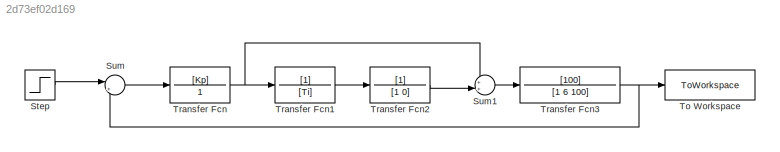
MODEL slx_2d73ef02d169
KIND model
CONFIG AbsTol = auto
CONFIG EnableMultiTasking = off
CONFIG FixedStep = auto
CONFIG MaxStep = auto
CONFIG MinStep = auto
CONFIG RelTol = 1e-3
CONFIG SampleTimeConstraint = Unconstrained
CONFIG SolverName = VariableStepAuto
CONFIG StartTime = 0.0
CONFIG StopTime = 10
BLOCK [Step] Step
  SampleTime = 0.01
BLOCK [Sum] Sum
  Inputs = |+-
BLOCK [Sum] Sum1
  Inputs = ++|
BLOCK [ToWorkspace] To Workspace
  FixptAsFi = on
  MaxDataPoints = inf
  SampleTime = -1
  SaveFormat = Timeseries
  VariableName = out
BLOCK [TransferFcn] Transfer Fcn
  Denominator = 1
  Numerator = [Kp]
BLOCK [TransferFcn] Transfer Fcn1
  Denominator = [Ti]
BLOCK [TransferFcn] Transfer Fcn2
  Denominator = [1 0]
BLOCK [TransferFcn] Transfer Fcn3
  Denominator = [1 6 100]
  Numerator = [100]
LINE Step:1 -> Sum:1
LINE Sum1:1 -> Transfer Fcn3:1
LINE Sum:1 -> Transfer Fcn:1
LINE Transfer Fcn1:1 -> Transfer Fcn2:1
LINE Transfer Fcn2:1 -> Sum1:2
NET Transfer Fcn3:1 -> Sum:2, To Workspace:1
NET Transfer Fcn:1 -> Sum1:1, Transfer Fcn1:1
note: NET lines group one-source signal fan-out (src -> all destinations, sorted); 1:1 wires keep LINE
